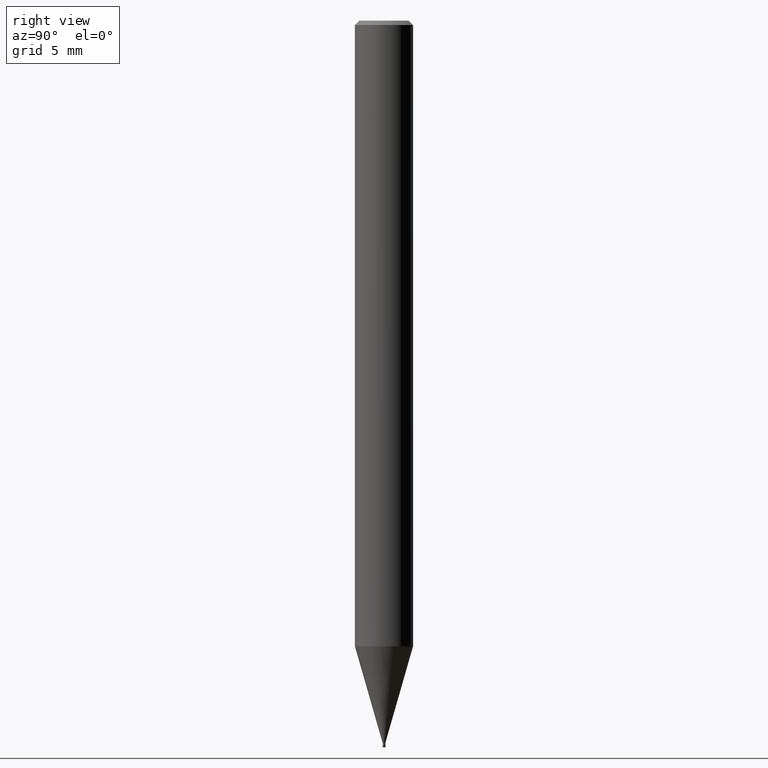
[diagram: clean part render]
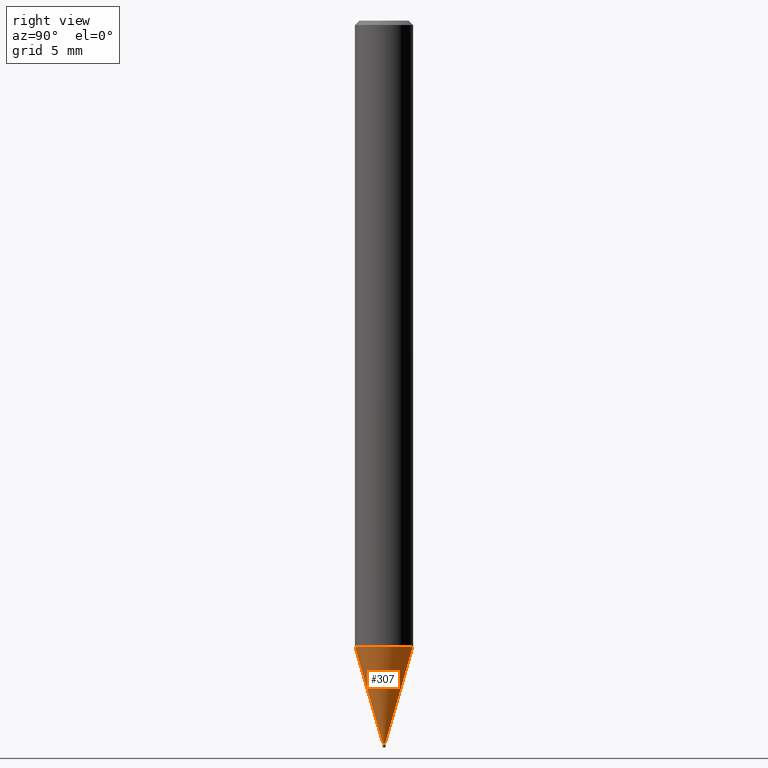
[diagram: same view with one face highlighted and labeled with its STEP entity id]
A machine part, right view. The second image highlights one B-rep face of the part: STEP entity #307.
In plain terms, the highlighted conical surface has half-angle 16.001 deg.
Its self-contained STEP definition (entity closure, byte-faithful):
#161=EDGE_CURVE('',#285,#265,#397,.T.);
#199=EDGE_CURVE('',#219,#285,#442,.T.);
#219=VERTEX_POINT('',#465);
#221=EDGE_CURVE('',#263,#219,#467,.T.);
#263=VERTEX_POINT('',#514);
#265=VERTEX_POINT('',#516);
#285=VERTEX_POINT('',#539);
#307=ADVANCED_FACE('',(#565),#566,.T.);
#325=EDGE_CURVE('',#263,#265,#585,.T.);
#397=LINE('',#661,#662);
#442=CIRCLE('',#718,0.09245);
#465=CARTESIAN_POINT('',(0.0,0.09245,-49.69));
#467=LINE('',#751,#752);
#514=CARTESIAN_POINT('',(0.0,1.99995,-43.038));
#516=CARTESIAN_POINT('',(2.44915147732706E-016,-1.99995,-43.038));
#539=CARTESIAN_POINT('',(1.13214857410879E-017,-0.09245,-49.69));
#565=FACE_OUTER_BOUND('',#874,.T.);
#566=CONICAL_SURFACE('',#875,1.0462,0.279262361421134);
#585=CIRCLE('',#897,1.99995);
#661=CARTESIAN_POINT('',(1.28118316736897E-016,-1.0462,-46.364));
#662=VECTOR('',#966,1.0);
#718=AXIS2_PLACEMENT_3D('',#1039,#1040,#1041);
#751=CARTESIAN_POINT('',(-1.28118316736897E-016,1.0462,-46.364));
#752=VECTOR('',#1067,1.0);
#874=EDGE_LOOP('',(#1196,#1197,#1198,#1199));
#875=AXIS2_PLACEMENT_3D('',#1200,#1201,#1202);
#897=AXIS2_PLACEMENT_3D('',#1217,#1218,#1219);
#966=DIRECTION('',(3.37558653544073E-017,-0.275646661876649,0.961259027419904));
#1039=CARTESIAN_POINT('',(0.0,0.0,-49.69));
#1040=DIRECTION('',(0.0,0.0,-1.0));
#1041=DIRECTION('',(0.0,1.0,0.0));
#1067=DIRECTION('',(3.37558653544073E-017,-0.275646661876649,-0.961259027419904));
#1196=ORIENTED_EDGE('',*,*,#221,.F.);
#1197=ORIENTED_EDGE('',*,*,#325,.T.);
#1198=ORIENTED_EDGE('',*,*,#161,.F.);
#1199=ORIENTED_EDGE('',*,*,#199,.F.);
#1200=CARTESIAN_POINT('',(0.0,0.0,-46.364));
#1201=DIRECTION('',(-0.0,-0.0,1.0));
#1202=DIRECTION('',(0.0,1.0,0.0));
#1217=CARTESIAN_POINT('',(0.0,0.0,-43.038));
#1218=DIRECTION('',(0.0,0.0,-1.0));
#1219=DIRECTION('',(0.0,1.0,0.0));